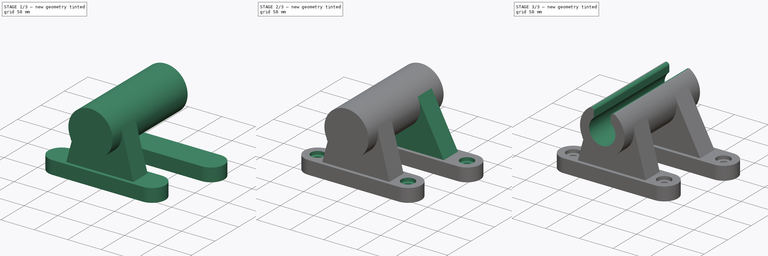
[diagram: build sequence overview — one tinted view per stage of 3, left to right]
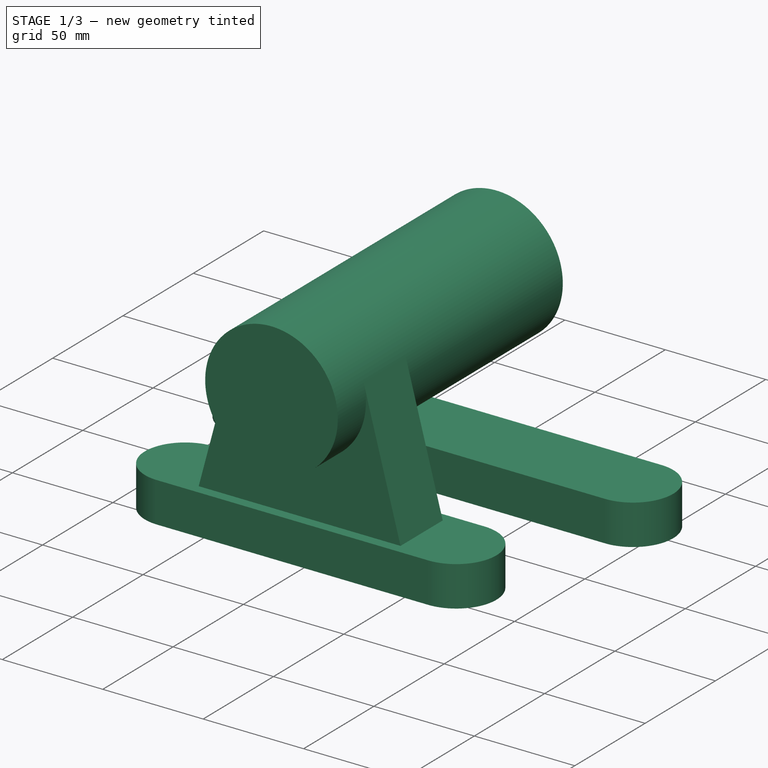
[diagram: stage 1 of 3 — iso view after this stage's code; geometry added in this stage tinted green]
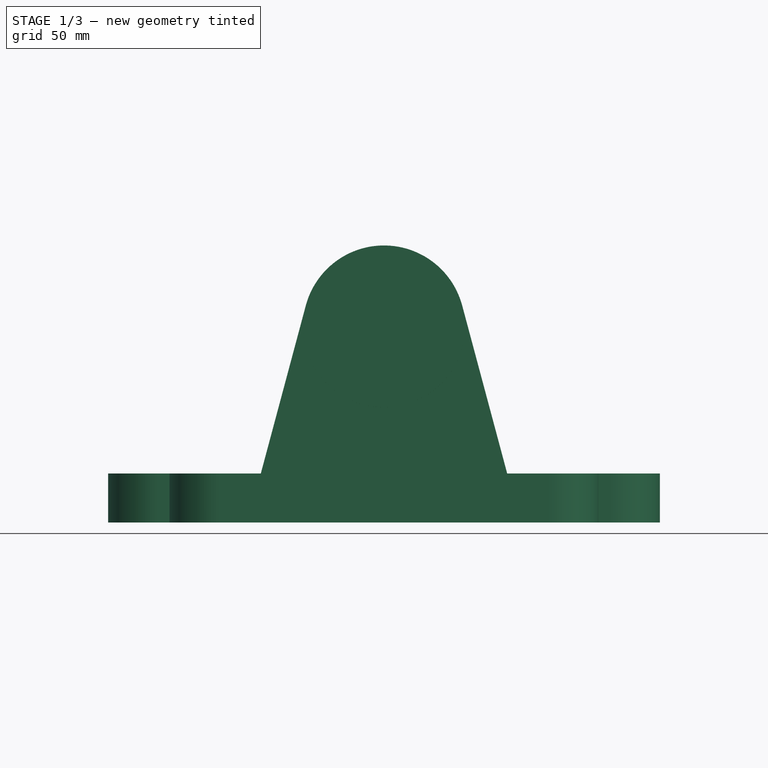
[diagram: stage 1 of 3 — front view after this stage's code; geometry added in this stage tinted green]
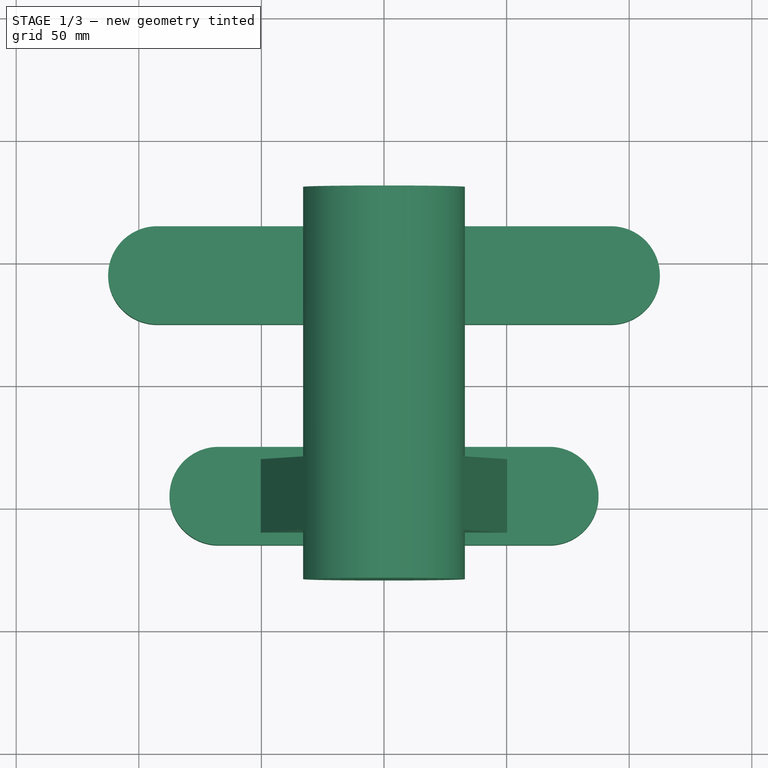
[diagram: stage 1 of 3 — top view after this stage's code; geometry added in this stage tinted green]
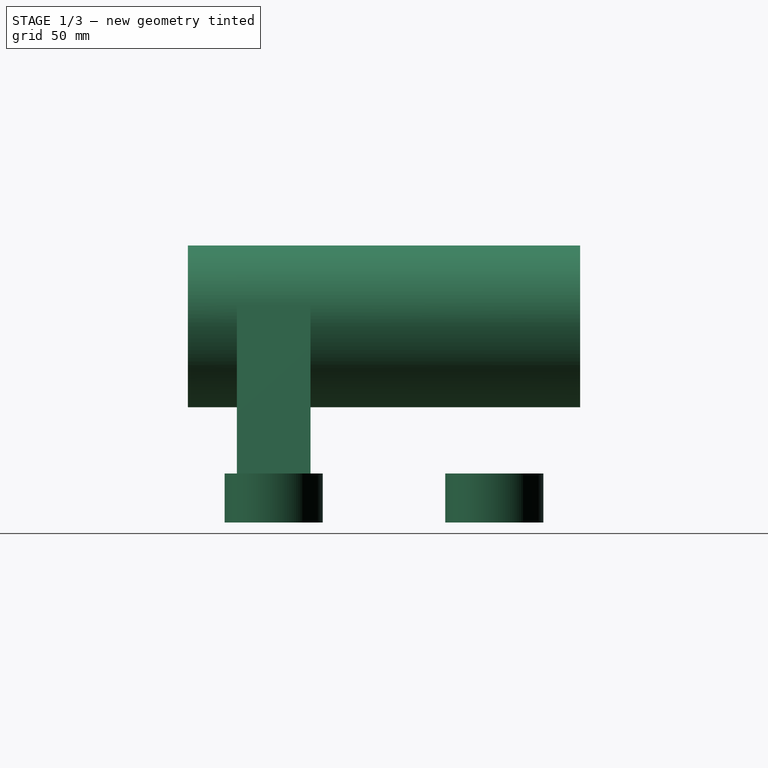
[diagram: stage 1 of 3 — right view after this stage's code; geometry added in this stage tinted green]
FCSTD DOCUMENT  (FreeCAD 1.1R42180 (Git))
Label: 2024-03-15-Rod_Mount_2
License: Creative Commons Attribution-NonCommercial-ShareAlike 4.0
LicenseURL: https://creativecommons.org/licenses/by-nc-sa/4.0/
objects: Sketcher::SketchObject×5, PartDesign::Pad×4, Part::DatumLine×2, Part::DatumPlane×2, PartDesign::Hole×2, App::Point×1, PartDesign::Pocket×1, PartDesign::Fillet×1, PartDesign::Body×1
note: 35 computed .brp shape members not serialized (recipe doc carries the construction recipe); baked Part::Feature solids carry a one-line shape summary decoded from their .brp

FEATURE [App::Point] Origin001  label="Origine"
  Role = Origin
FEATURE [Sketcher::SketchObject] Sketch
  ArcFitTolerance = 1e-06
  AttachmentSupport = -> [Origin]
  ExternalTypes = [0]
  FullyConstrained = true
  MakeInternals = false
  MapMode = 5
  Placement = pos=(0,0,0) rot=(1,0,0;1.5708rad)
  sketch-geometry (1):
    g0: Circle CenterX=0 CenterY=80 CenterZ=0 NormalX=0 NormalY=0 NormalZ=1 AngleXU=0 Radius=33
  constraints (3):
    c: Diameter(g0) = 66
    c: PointOnObject(g0,g-2)
    c: Distance(g0,g-1) = 80
FEATURE [PartDesign::Pad] Pad
  Direction = (0,-1,2e-16)
  Length = 160
  Length2 = 10
  Midplane = true
  Profile = -> Sketch
  ReferenceAxis = -> Sketch [N_Axis]
  Refine = true
  Suppressed = false
  Type = 0
FEATURE [Sketcher::SketchObject] Sketch001
  ArcFitTolerance = 1e-06
  AttachmentSupport = -> [Origin]
  ExternalGeometry = -> [Pad]
  ExternalTypes = [0,0]
  FullyConstrained = true
  MakeInternals = false
  MapMode = 5
  sketch-geometry (10):
    g0: ArcOfCircle CenterX=-92.5 CenterY=45 CenterZ=0 NormalX=0 NormalY=0 NormalZ=1 AngleXU=0 Radius=20 StartAngle=1.5708 EndAngle=4.71239
    g1: ArcOfCircle CenterX=92.5 CenterY=45 CenterZ=0 NormalX=0 NormalY=0 NormalZ=1 AngleXU=0 Radius=20 StartAngle=4.71239 EndAngle=7.85398
    g2: LineSegment StartX=-92.5 StartY=65 StartZ=0 EndX=92.5 EndY=65 EndZ=0
    g3: LineSegment StartX=-92.5 StartY=25 StartZ=0 EndX=92.5 EndY=25 EndZ=0
    g4: ArcOfCircle CenterX=-67.5 CenterY=-45 CenterZ=0 NormalX=0 NormalY=0 NormalZ=1 AngleXU=0 Radius=20 StartAngle=1.5708 EndAngle=4.71239
    g5: ArcOfCircle CenterX=67.5 CenterY=-45 CenterZ=0 NormalX=0 NormalY=0 NormalZ=1 AngleXU=0 Radius=20 StartAngle=4.71239 EndAngle=7.85398
    g6: LineSegment StartX=-67.5 StartY=-25 StartZ=0 EndX=67.5 EndY=-25 EndZ=0
    g7: LineSegment StartX=-67.5 StartY=-65 StartZ=0 EndX=67.5 EndY=-65 EndZ=0
    g8: LineSegment [constr] StartX=33 StartY=80 StartZ=0 EndX=33 EndY=65 EndZ=0
    g9: LineSegment [constr] StartX=33 StartY=-65 StartZ=0 EndX=33 EndY=-80 EndZ=0
  constraints (24):
    c: Tangent(g0,g2) = 1.5708
    c: Tangent(g0,g3) = -1.5708
    c: Tangent(g1,g2) = 1.5708
    c: Tangent(g1,g3) = -1.5708
    c: Equal(g0,g1)
    c: Tangent(g4,g6) = 1.5708
    c: Tangent(g4,g7) = -1.5708
    c: Tangent(g5,g6) = 1.5708
    c: Tangent(g5,g7) = -1.5708
    c: Equal(g4,g5)
    c: DistanceY(g5,g1) = 90
    c: DistanceX(g4,g5) = 135
    c: DistanceX(g0,g1) = 185
    c: Symmetric(g1,g0,g-2)
    c: Symmetric(g5,g4,g-2)
    c: Radius(g5) = 20
    c: Equal(g5,g1)
    c: Coincident(g8,g-3)
    c: PointOnObject(g8,g2)
    c: PointOnObject(g9,g7)
    c: Coincident(g9,g-4)
    c: Vertical(g9)
    c: Vertical(g8)
    c: Equal(g9,g8)
FEATURE [PartDesign::Pad] Pad001
  BaseFeature = -> Pad
  Direction = (0,0,1)
  Length = 20
  Length2 = 10
  Profile = -> Sketch001
  ReferenceAxis = -> Sketch001 [N_Axis]
  Refine = true
  Suppressed = false
  Type = 0
FEATURE [Part::DatumLine] DatumLine
  AttacherType = Attacher::AttachEngineLine
  AttachmentSupport = -> [Pad001]
  MapMode = 19
  Placement = pos=(92.5,45,20) rot=(0,0,-1;1.5708rad)
FEATURE [Part::DatumLine] DatumLine001
  AttacherType = Attacher::AttachEngineLine
  AttachmentSupport = -> [Pad001]
  MapMode = 19
  Placement = pos=(67.5,-45,20) rot=(0,0,-1;1.5708rad)
FEATURE [Part::DatumPlane] DatumPlane
  AttachmentSupport = -> [DatumLine001]
  MapMode = 4
  Placement = pos=(67.5,-45,20) rot=(1,0,0;1.5708rad)
FEATURE [Sketcher::SketchObject] Sketch002
  ArcFitTolerance = 1e-06
  AttachmentSupport = -> [DatumPlane]
  ExternalGeometry = -> [Pad001]
  ExternalTypes = [0,0]
  FullyConstrained = true
  MakeInternals = false
  MapMode = 5
  Placement = pos=(67.5,-45,20) rot=(1,0,0;1.5708rad)
  sketch-geometry (4):
    g0: LineSegment StartX=-99.3756 StartY=68.541 StartZ=0 EndX=-117.741 EndY=0 EndZ=0
    g1: LineSegment StartX=-117.741 StartY=0 StartZ=0 EndX=-17.2589 EndY=3.6e-15 EndZ=0
    g2: LineSegment StartX=-17.2589 StartY=3.6e-15 StartZ=0 EndX=-35.6244 EndY=68.541 EndZ=0
    g3: LineSegment StartX=-35.6244 StartY=68.541 StartZ=0 EndX=-99.3756 EndY=68.541 EndZ=0
  constraints (10):
    c: PointOnObject(g0,g-4)
    c: Coincident(g0,g1)
    c: PointOnObject(g1,g-4)
    c: Coincident(g1,g2)
    c: Coincident(g2,g3)
    c: Coincident(g3,g0)
    c: Tangent(g2,g-3) = -1.5708
    c: Tangent(g0,g-3) = -1.5708
    c: Horizontal(g3)
    c: Angle(g0,g2) = 0.523599
FEATURE [PartDesign::Pad] Pad002
  BaseFeature = -> Pad001
  Direction = (0,-1,2e-16)
  Length = 30
  Length2 = 10
  Midplane = true
  Profile = -> Sketch002
  ReferenceAxis = -> Sketch002 [N_Axis]
  Refine = true
  Suppressed = false
  Type = 0
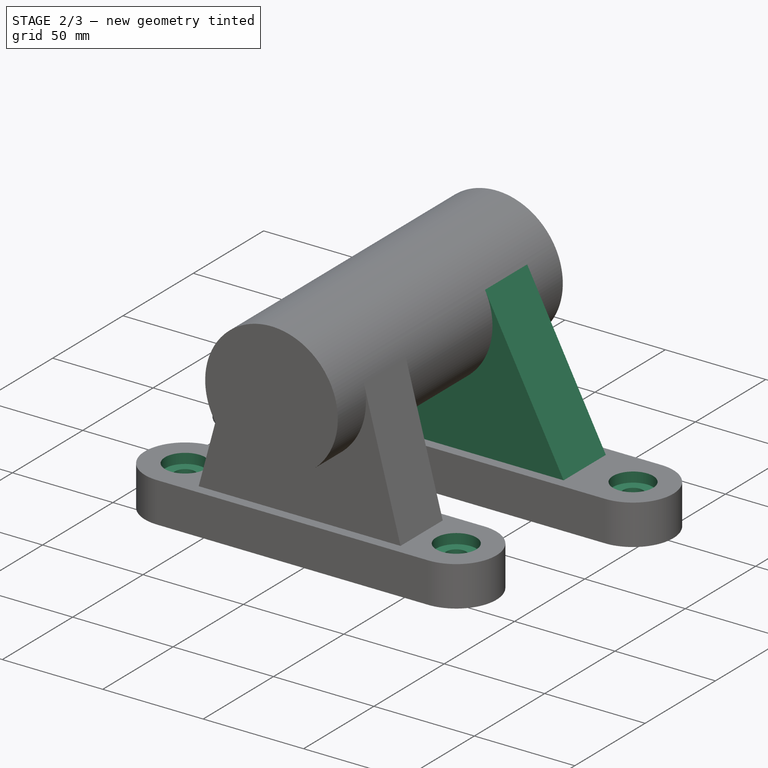
[diagram: stage 2 of 3 — iso view after this stage's code; geometry added in this stage tinted green]
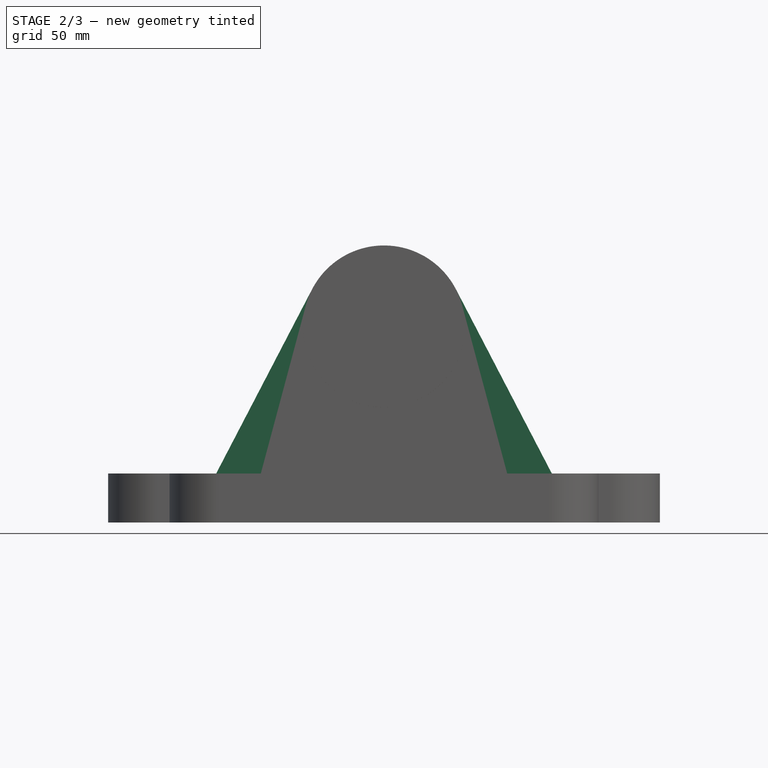
[diagram: stage 2 of 3 — front view after this stage's code; geometry added in this stage tinted green]
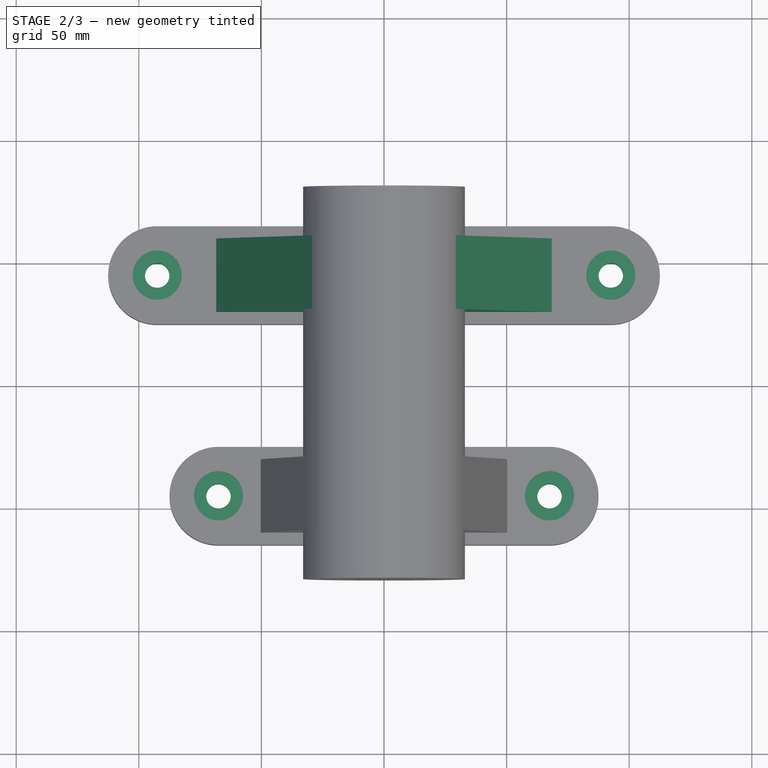
[diagram: stage 2 of 3 — top view after this stage's code; geometry added in this stage tinted green]
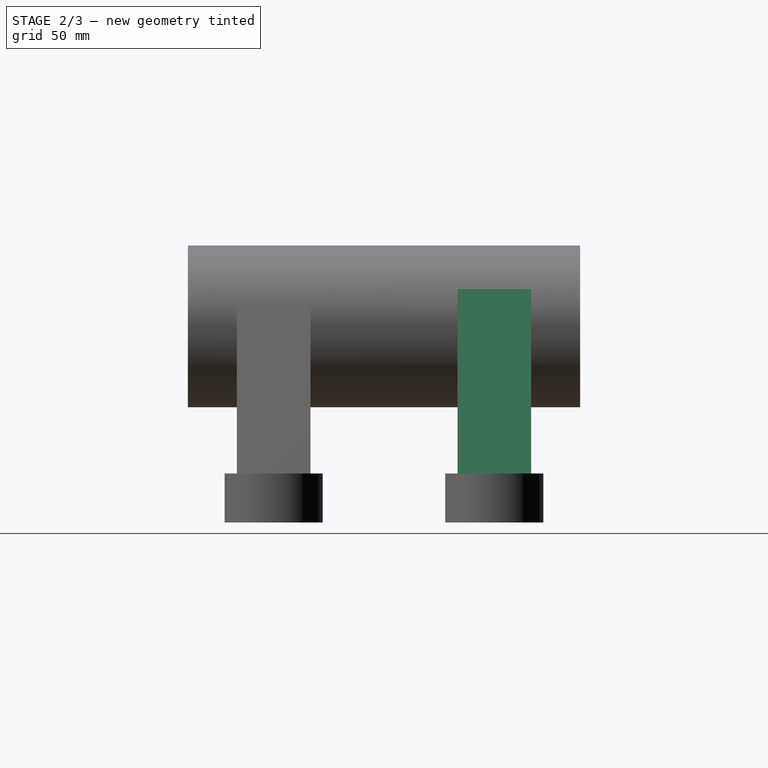
[diagram: stage 2 of 3 — right view after this stage's code; geometry added in this stage tinted green]
FEATURE [Part::DatumPlane] DatumPlane001
  AttachmentSupport = -> [DatumLine]
  MapMode = 4
  Placement = pos=(92.5,45,20) rot=(1,0,0;1.5708rad)
FEATURE [Sketcher::SketchObject] Sketch003
  ArcFitTolerance = 1e-06
  AttachmentSupport = -> [DatumPlane001]
  ExternalGeometry = -> [Pad002]
  ExternalTypes = [0,0]
  FullyConstrained = true
  MakeInternals = false
  MapMode = 5
  Placement = pos=(92.5,45,20) rot=(1,0,0;1.5708rad)
  sketch-geometry (4):
    g0: LineSegment StartX=-121.771 StartY=75.2378 StartZ=0 EndX=-63.2287 EndY=75.2378 EndZ=0
    g1: LineSegment StartX=-63.2287 StartY=75.2378 StartZ=0 EndX=-24.0624 EndY=0 EndZ=0
    g2: LineSegment StartX=-24.0624 StartY=0 StartZ=0 EndX=-160.938 EndY=3.6e-15 EndZ=0
    g3: LineSegment StartX=-160.938 StartY=3.6e-15 StartZ=0 EndX=-121.771 EndY=75.2378 EndZ=0
  constraints (12):
    c: PointOnObject(g0,g-3)
    c: PointOnObject(g0,g-3)
    c: Horizontal(g0)
    c: Coincident(g0,g1)
    c: PointOnObject(g1,g-4)
    c: Coincident(g1,g2)
    c: PointOnObject(g2,g-4)
    c: Coincident(g2,g3)
    c: Coincident(g3,g0)
    c: Tangent(g1,g-3)
    c: Tangent(g3,g-3)
    c: Angle(g3,g1) = 0.959931
FEATURE [PartDesign::Pad] Pad003
  BaseFeature = -> Pad002
  Direction = (0,-1,2e-16)
  Length = 30
  Length2 = 10
  Midplane = true
  Profile = -> Sketch003
  ReferenceAxis = -> Sketch003 [N_Axis]
  Refine = true
  Suppressed = false
  Type = 0
FEATURE [PartDesign::Hole] Hole
  BaseFeature = -> Pad003
  BaseProfileType = 7
  CustomThreadClearance = 0
  Depth = 602.578
  DepthType = 1
  Diameter = 10
  DrillForDepth = false
  DrillPoint = 1
  DrillPointAngle = 118
  HoleCutCountersinkAngle = 90
  HoleCutCustomValues = false
  HoleCutDepth = 5
  HoleCutDiameter = 20
  HoleCutType = 1
  ModelThread = false
  Profile = -> Pad003 [Edge41,Edge37,Edge38,Edge34]
  Refine = true
  Suppressed = false
  Tapered = false
  TaperedAngle = 90
  ThreadClass = 0
  ThreadDepth = 602.578
  ThreadDepthType = 0
  ThreadDiameter = 10
  ThreadDirection = 0
  ThreadFit = 0
  ThreadSize = 0
  ThreadType = 0
  Threaded = false
  UseCustomThreadClearance = false
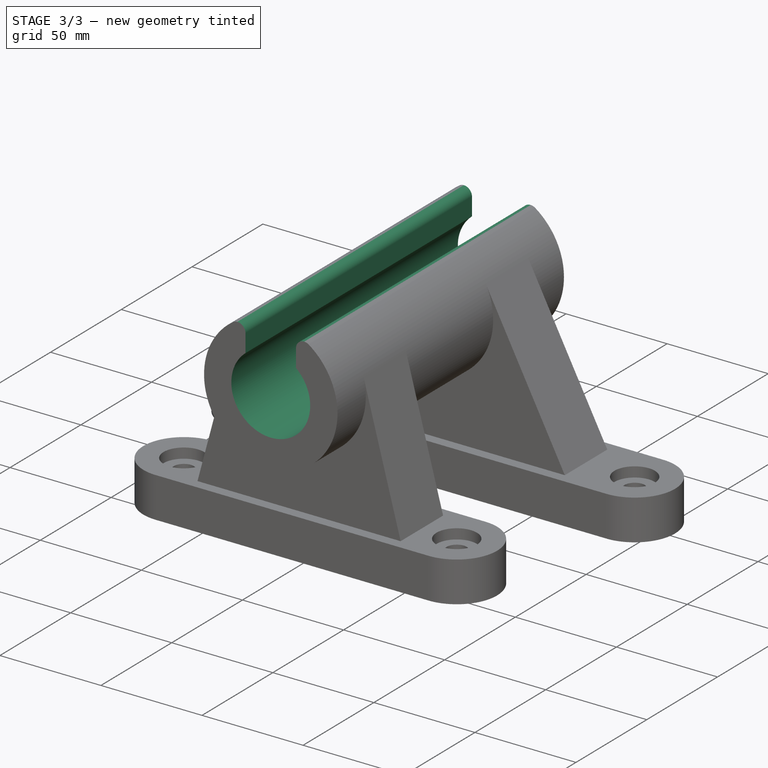
[diagram: stage 3 of 3 — iso view after this stage's code; geometry added in this stage tinted green]
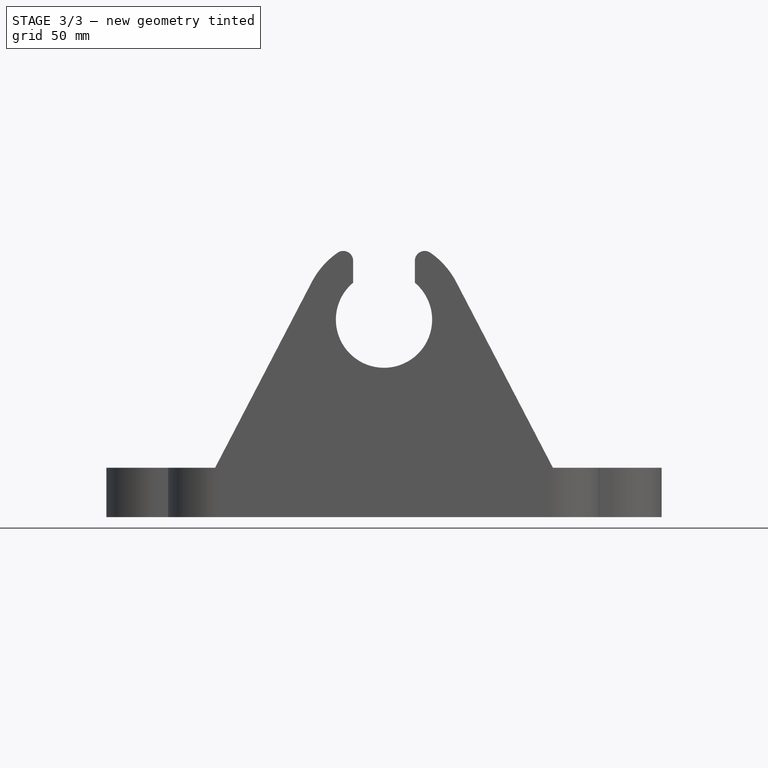
[diagram: stage 3 of 3 — front view after this stage's code; geometry added in this stage tinted green]
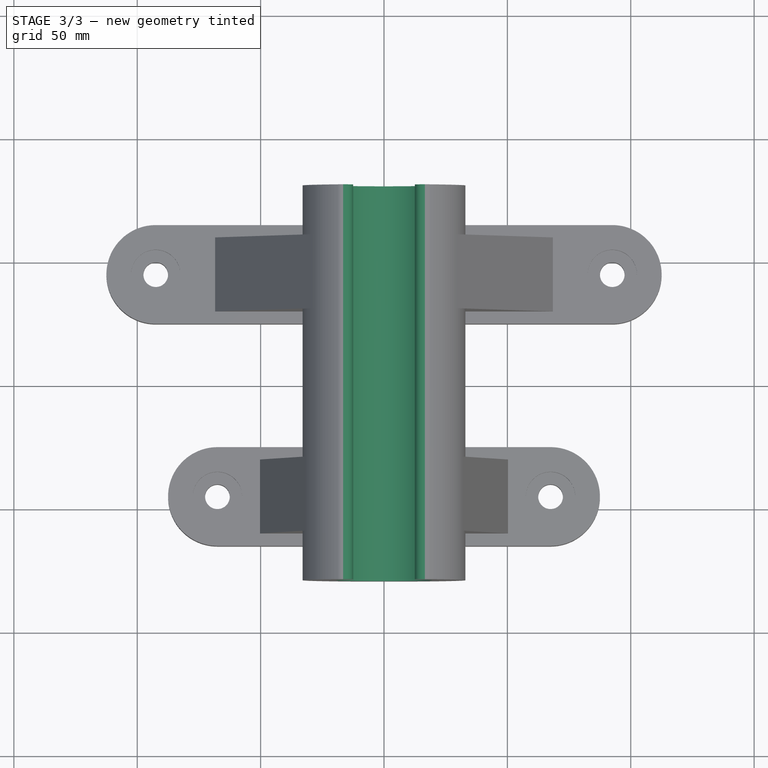
[diagram: stage 3 of 3 — top view after this stage's code; geometry added in this stage tinted green]
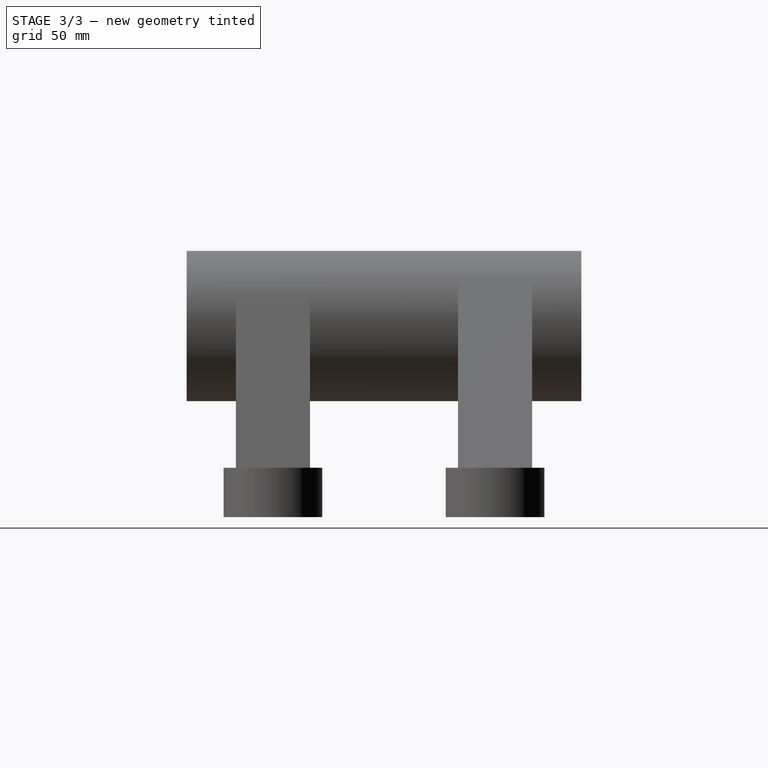
[diagram: stage 3 of 3 — right view after this stage's code; geometry added in this stage tinted green]
FEATURE [PartDesign::Hole] Hole001
  BaseFeature = -> Hole
  BaseProfileType = 7
  CustomThreadClearance = 0
  Depth = 602.578
  DepthType = 1
  Diameter = 39
  DrillForDepth = false
  DrillPoint = 1
  DrillPointAngle = 118
  HoleCutCountersinkAngle = 90
  HoleCutCustomValues = false
  HoleCutDepth = 0
  HoleCutDiameter = 0
  HoleCutType = 0
  ModelThread = false
  Profile = -> Hole [Face11]
  Refine = true
  Suppressed = false
  Tapered = false
  TaperedAngle = 90
  ThreadClass = 0
  ThreadDepth = 602.578
  ThreadDepthType = 0
  ThreadDiameter = 39
  ThreadDirection = 0
  ThreadFit = 0
  ThreadSize = 0
  ThreadType = 0
  Threaded = false
  UseCustomThreadClearance = false
FEATURE [Sketcher::SketchObject] Sketch004
  ArcFitTolerance = 1e-06
  AttachmentSupport = -> [Origin]
  ExternalGeometry = -> [Hole001]
  ExternalTypes = [0,0]
  FullyConstrained = true
  MakeInternals = false
  MapMode = 5
  Placement = pos=(0,0,0) rot=(1,0,0;1.5708rad)
  sketch-geometry (5):
    g0: LineSegment StartX=-12.5 StartY=140 StartZ=0 EndX=-12.5 EndY=80 EndZ=0
    g1: LineSegment StartX=-12.5 StartY=80 StartZ=0 EndX=12.5 EndY=80 EndZ=0
    g2: LineSegment StartX=12.5 StartY=80 StartZ=0 EndX=12.5 EndY=140 EndZ=0
    g3: LineSegment StartX=12.5 StartY=140 StartZ=0 EndX=-12.5 EndY=140 EndZ=0
    g4: GeomPoint [constr] X=0 Y=110 Z=0
  constraints (13):
    c: Coincident(g0,g1)
    c: Coincident(g1,g2)
    c: Coincident(g2,g3)
    c: Coincident(g3,g0)
    c: Vertical(g0)
    c: Vertical(g2)
    c: Horizontal(g1)
    c: Horizontal(g3)
    c: Symmetric(g2,g0,g4)
    c: PointOnObject(g4,g-2)
    c: Distance(g3,g3) = 25
    c: Horizontal(g-3,g1)
    c: DistanceY(g2,g2) = 60
FEATURE [PartDesign::Pocket] Pocket
  BaseFeature = -> Hole001
  Direction = (0,1,-2e-16)
  Length = 5
  Length2 = 5
  Midplane = true
  Profile = -> Sketch004
  ReferenceAxis = -> Sketch004 [N_Axis]
  Refine = true
  Suppressed = false
  Type = 1
FEATURE [PartDesign::Fillet] Fillet
  Base = -> Pocket [Edge7,Edge16]
  BaseFeature = -> Pocket
  Radius = 4
  Refine = true
  SupportTransform = false
  Suppressed = false
  UseAllEdges = false
FEATURE [PartDesign::Body] Body
  AllowCompound = true
  Group = -> [Sketch,Pad,Sketch001,Pad001,DatumLine,DatumLine001,DatumPlane,Sketch002,Pad002,DatumPlane001,Sketch003,Pad003,Hole,Hole001,Sketch004,Pocket,Fillet]
  Origin = -> Origin
  Tip = -> Fillet
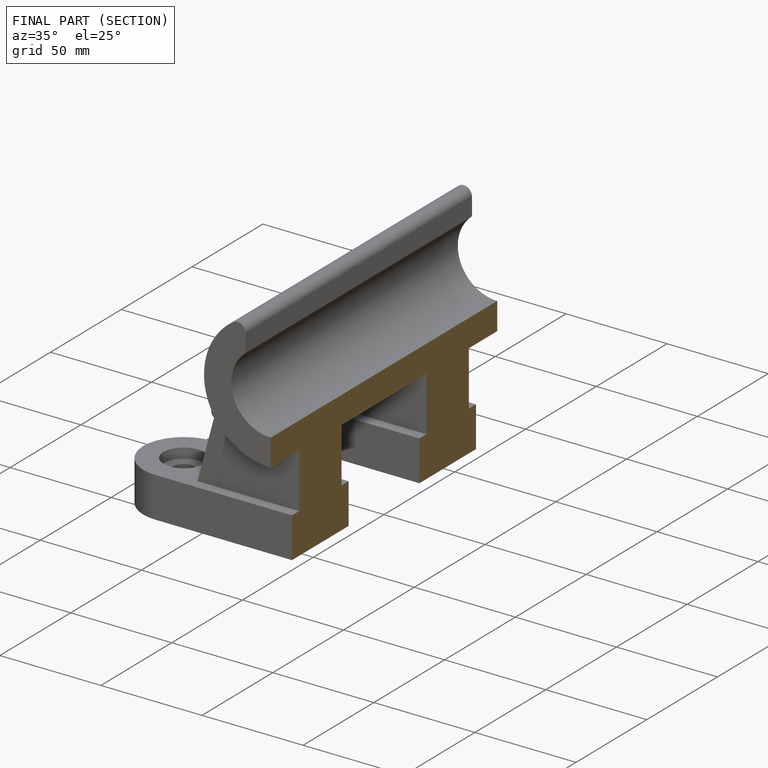
[diagram: finished part — half-section view (interior)]
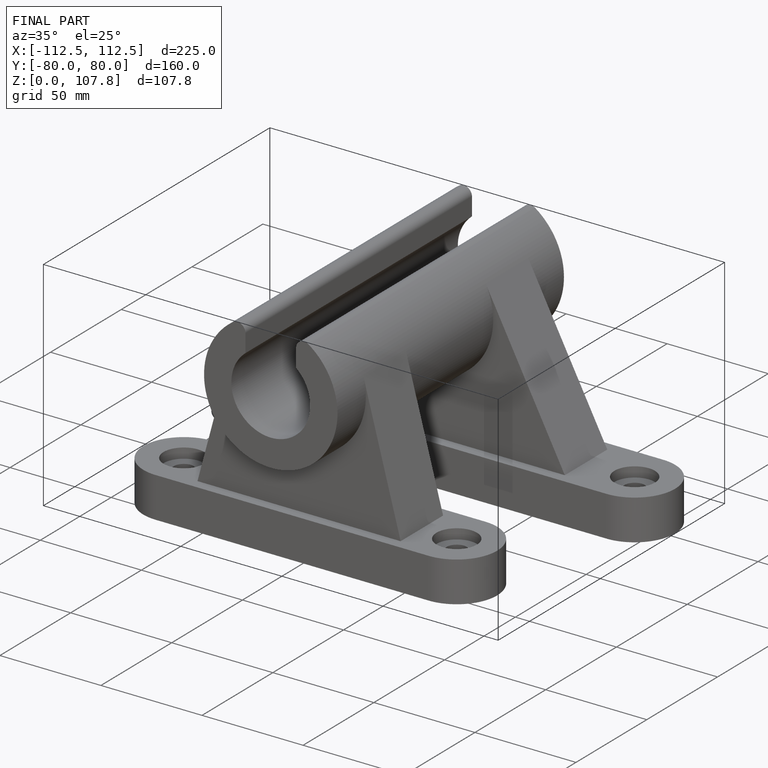
[diagram: finished part — iso view with bounding-box wireframe]
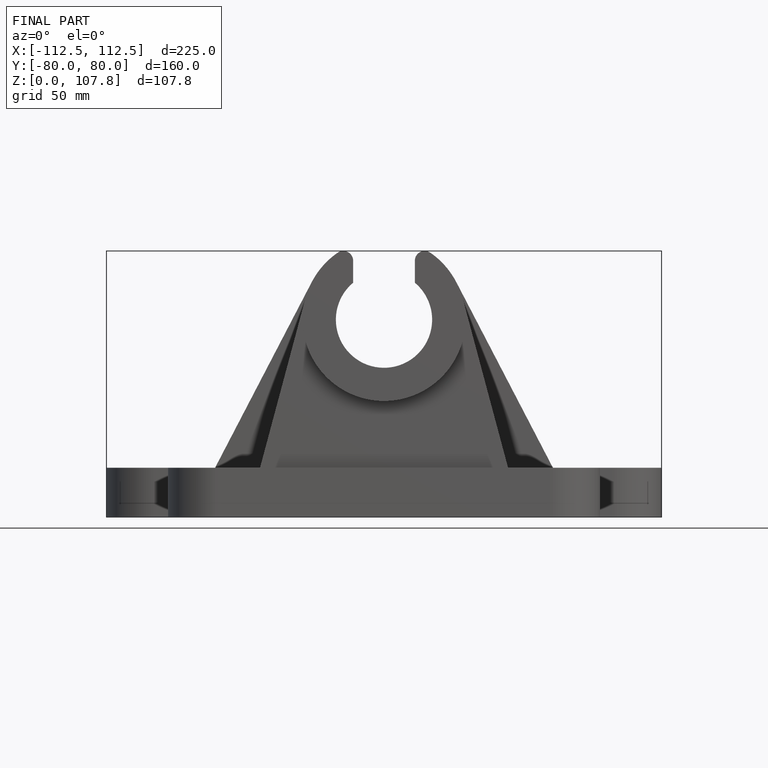
[diagram: finished part — front view with bounding-box wireframe]
